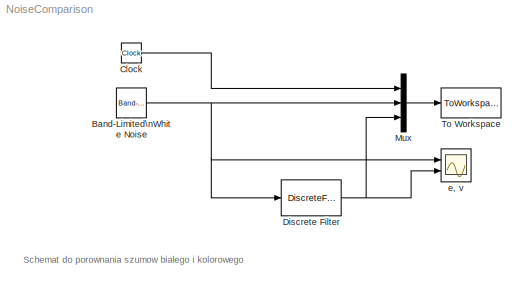
MODEL NoiseComparison
KIND model
BLOCK [Reference] Band-Limited\nWhite Noise  REF=simulink/Sources/Band-Limited\nWhite Noise
  Cov = [0.1*Tp]
  Ports = [0, 1]
  ShowPortLabels = on
  SourceBlock = simulink/Sources/Band-Limited\nWhite Noise
  SourceType = Band-Limited White Noise.
  Ts = Tp
  VectorParams1D = on
  seed = [23341]
BLOCK [Clock] Clock
  Decimation = 10
BLOCK [DiscreteFilter] Discrete Filter
  Denominator = [1 -0.9]
  Numerator = [0.1]
  SampleTime = Tp
BLOCK [Mux] Mux
  DisplayOption = bar
  Inputs = 3
  Ports = [3, 1]
BLOCK [ToWorkspace] To Workspace
  MaxDataPoints = inf
  SampleTime = -1
  SaveFormat = Array
  VariableName = NoiseSig
BLOCK [Scope] e, v
  DataFormat = StructureWithTime
  Floating = off
  LimitDataPoints = off
  NumInputPorts = 2
  Ports = [2]
  SampleTime = 0
  YMax = 5~5
  YMin = -5~-5
ANNOTATION (root): Schemat do porownania szumow bialego i kolorowego
NET Band-Limited\nWhite Noise:1 -> Discrete Filter:1, Mux:2, e, v:1
LINE Clock:1 -> Mux:1
NET Discrete Filter:1 -> Mux:3, e, v:2
LINE Mux:1 -> To Workspace:1
note: NET lines group one-source signal fan-out (src -> all destinations, sorted); 1:1 wires keep LINE
